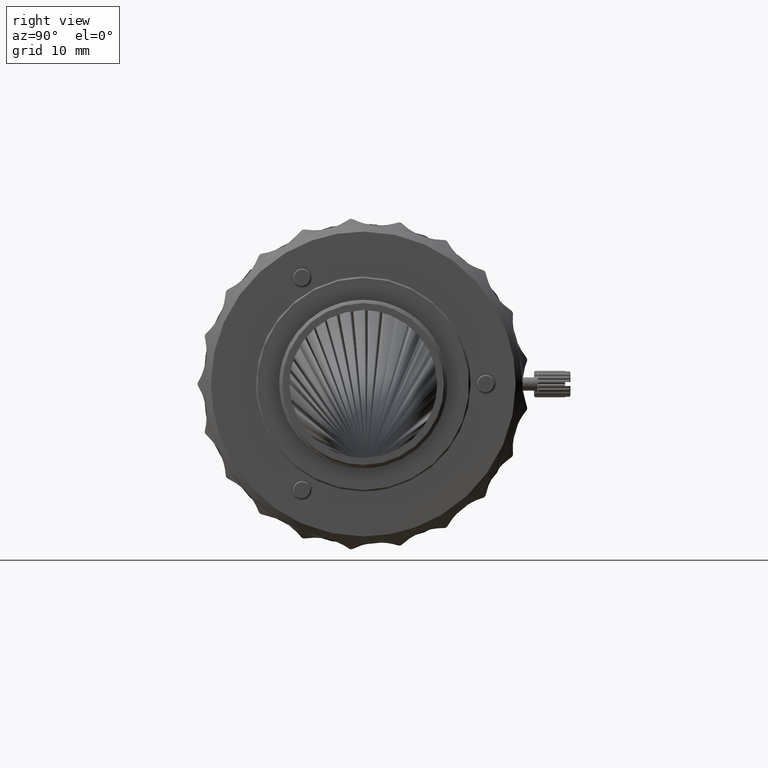
[diagram: clean part render]
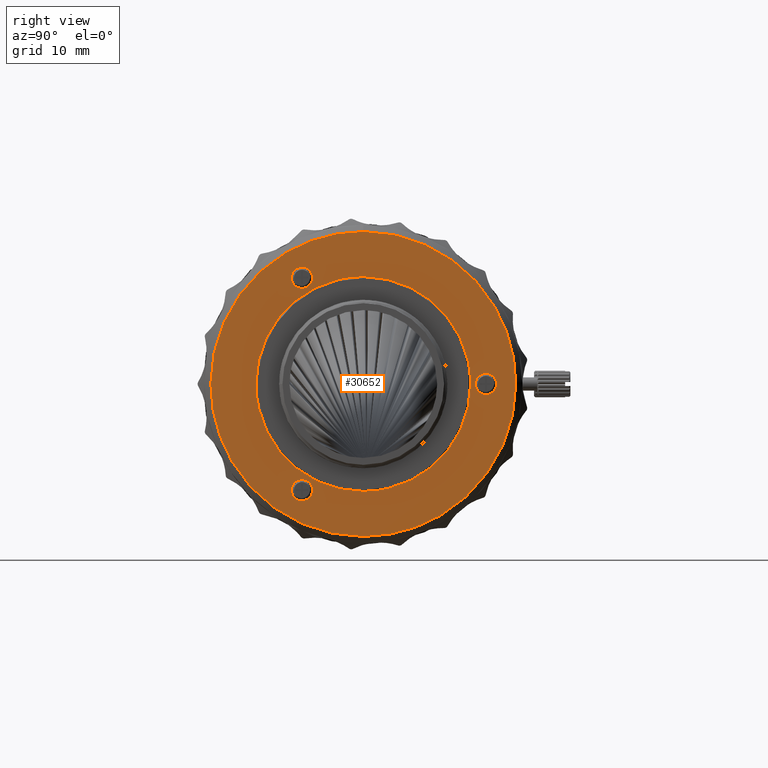
[diagram: same view with one face highlighted and labeled with its STEP entity id]
A machine part, right view. The second image highlights one B-rep face of the part: STEP entity #30652.
In plain terms, the highlighted planar face has unit normal (1, 0, 0).
Its self-contained STEP definition (entity closure, byte-faithful):
#33 = CARTESIAN_POINT ( 'NONE',  ( 72.34600000000003206, 19.48327475195986125, 1.279466947837084589 ) ) ;
#277 = CARTESIAN_POINT ( 'NONE',  ( 72.34599999999998943, -7.649999999999998579, -15.81203045977067134 ) ) ;
#313 = CARTESIAN_POINT ( 'NONE',  ( 72.34600000000000364, 18.50000000000000000, -1.599999999999996314 ) ) ;
#530 = CARTESIAN_POINT ( 'NONE',  ( 72.34600000000000364, 20.09999999999999787, -1.567547902908608388E-16 ) ) ;
#1724 = EDGE_CURVE ( 'NONE', #71629, #14433, #76705, .T. ) ;
#1728 = CARTESIAN_POINT ( 'NONE',  ( 72.34599999999998943, -9.040560489760681051, -17.62146997001000059 ) ) ;
#1990 = CARTESIAN_POINT ( 'NONE',  ( 72.34600000000000364, 11.52646550448638152, -19.96012677810042391 ) ) ;
#2954 = CARTESIAN_POINT ( 'NONE',  ( 72.34600000000000364, 18.28747538716073251, -14.02976521499721585 ) ) ;
#2956 = EDGE_CURVE ( 'NONE', #22178, #73763, #82529, .T. ) ;
#3169 = CARTESIAN_POINT ( 'NONE',  ( 72.34600000000000364, -9.668796614974848325, 17.57982625267931098 ) ) ;
#3200 = CARTESIAN_POINT ( 'NONE',  ( 72.34600000000000364, -9.040560489760682827, 17.62146997001000059 ) ) ;
#3241 = CARTESIAN_POINT ( 'NONE',  ( 72.34600000000000364, -9.250000000000001776, 14.42146997000999953 ) ) ;
#3563 = CARTESIAN_POINT ( 'NONE',  ( 72.34600000000000364, -1.505346479929906112, -23.00000000000000000 ) ) ;
#3640 = CARTESIAN_POINT ( 'NONE',  ( 72.34600000000000364, 17.51672524804014230, 1.279466947837084811 ) ) ;
#3734 = CARTESIAN_POINT ( 'NONE',  ( 72.34600000000000364, -7.851941778633186431, 15.21567960141656251 ) ) ;
#4174 = B_SPLINE_CURVE_WITH_KNOTS ( 'NONE', 3,
 ( #93812, #25877, #4179, #19460, #12049, #78556, #92828, #48982, #3200, #71654 ),
 .UNSPECIFIED., .F., .F.,
 ( 4, 2, 2, 2, 4 ),
 ( 0.000000000000000000, 0.1249999999999998335, 0.2499999999999998890, 0.3749999999999999445, 0.5000000000000000000 ),
 .UNSPECIFIED. ) ;
#4179 = CARTESIAN_POINT ( 'NONE',  ( 72.34599999999997522, -7.691643717330691743, 16.44026658498484750 ) ) ;
#4220 = CARTESIAN_POINT ( 'NONE',  ( 72.34599999999998943, -9.040560489760681051, 14.42146997000999953 ) ) ;
#4533 = CARTESIAN_POINT ( 'NONE',  ( 72.34600000000000364, -15.19901526406302494, -17.32789667061227235 ) ) ;
#4605 = ORIENTED_EDGE ( 'NONE', *, *, #74880, .T. ) ;
#4693 = CARTESIAN_POINT ( 'NONE',  ( 72.34599999999997522, -21.82530040469135102, 7.410960144875548217 ) ) ;
#5594 = CARTESIAN_POINT ( 'NONE',  ( 72.34600000000001785, 17.22053305216291363, 0.9832747519598614705 ) ) ;
#6033 = ORIENTED_EDGE ( 'NONE', *, *, #88146, .F. ) ;
#6164 = CARTESIAN_POINT ( 'NONE',  ( 72.34599999999998943, -22.99999999977789855, 1.505346483096639432 ) ) ;
#6235 = CARTESIAN_POINT ( 'NONE',  ( 72.34600000000001785, -8.266725248040136975, -14.74200302217291103 ) ) ;
#6251 = CARTESIAN_POINT ( 'NONE',  ( 72.34599999999997522, 18.28747538892106661, 14.02976521272457155 ) ) ;
#6659 = CARTESIAN_POINT ( 'NONE',  ( 72.34599999999997522, -17.32789667000329459, 15.19901526473481823 ) ) ;
#7065 = CARTESIAN_POINT ( 'NONE',  ( 72.34600000000003206, 16.09624051417745250, 2.117379975320241581 ) ) ;
#7127 = B_SPLINE_CURVE_WITH_KNOTS ( 'NONE', 3,
 ( #31797, #25876, #70679, #55402, #62759, #54429, #84519, #41117, #47042, #55893, #9637, #85482, #85961, #10610, #71169, #92826, #39667, #92355 ),
 .UNSPECIFIED., .F., .F.,
 ( 4, 2, 2, 2, 2, 2, 2, 2, 4 ),
 ( 0.000000000000000000, 0.06250000000000001388, 0.1250000000000000278, 0.1875000000000000555, 0.2500000000000000555, 0.3125000000000000555, 0.3750000000000001110, 0.4375000000000000555, 0.5000000000000000000 ),
 .UNSPECIFIED. ) ;
#7698 = CARTESIAN_POINT ( 'NONE',  ( 72.34600000000000364, -7.650000000000001243, -16.02146997000999562 ) ) ;
#8659 = CARTESIAN_POINT ( 'NONE',  ( 72.34600000000000364, -9.250000000000001776, -17.62146997001000415 ) ) ;
#8916 = CARTESIAN_POINT ( 'NONE',  ( 72.34600000000000364, 17.32789667000330525, -15.19901526473488396 ) ) ;
#9385 = CARTESIAN_POINT ( 'NONE',  ( 72.34600000000001785, 7.410960141655944078, -21.82530040578464181 ) ) ;
#9514 = VERTEX_POINT ( 'NONE', #21229 ) ;
#9637 = CARTESIAN_POINT ( 'NONE',  ( 72.34600000000000364, 9.884353021853733878, -12.87901737945677638 ) ) ;
#9645 = CARTESIAN_POINT ( 'NONE',  ( 72.34600000000000364, 16.94164371733070240, -0.4187966149748475475 ) ) ;
#9651 = CARTESIAN_POINT ( 'NONE',  ( 72.34599999999997522, -4.203378958676862176, -15.68130951163104037 ) ) ;
#9780 = CARTESIAN_POINT ( 'NONE',  ( 72.34600000000000364, -10.64805822136681179, -15.21567960141656428 ) ) ;
#10224 = CARTESIAN_POINT ( 'NONE',  ( 72.34600000000000364, 20.09999999999999787, -0.2094395102393194763 ) ) ;
#10578 = CARTESIAN_POINT ( 'NONE',  ( 72.34600000000000364, -9.250000000000001776, 17.62146997001000059 ) ) ;
#10610 = CARTESIAN_POINT ( 'NONE',  ( 72.34600000000003206, 5.217086906266509949, -15.37380456759237823 ) ) ;
#10624 = CARTESIAN_POINT ( 'NONE',  ( 72.34600000000003206, -14.06059805916265404, -8.116122527952690291 ) ) ;
#10709 = EDGE_LOOP ( 'NONE', ( #33125, #92075, #49530, #72028 ) ) ;
#10952 = CARTESIAN_POINT ( 'NONE',  ( 72.34599999999998943, -3.010655737201569426, -22.85173997875637397 ) ) ;
#11044 = CARTESIAN_POINT ( 'NONE',  ( 72.34600000000001785, -10.52946694783708637, 17.00474472196986397 ) ) ;
#11189 = CARTESIAN_POINT ( 'NONE',  ( 72.34600000000001785, 19.77946694783708637, -0.9832747519598625807 ) ) ;
#12049 = CARTESIAN_POINT ( 'NONE',  ( 72.34600000000001785, -7.970533052162914522, 17.00474472196986753 ) ) ;
#12548 = CARTESIAN_POINT ( 'NONE',  ( 72.34600000000001785, -12.20699959794086809, 10.70320905788714150 ) ) ;
#12955 = CARTESIAN_POINT ( 'NONE',  ( 72.34599999999998943, -22.99999999999998579, 3.398692523665877153E-09 ) ) ;
#13042 = CARTESIAN_POINT ( 'NONE',  ( 72.34600000000000364, -15.68120257088721736, -4.203546457988838192 ) ) ;
#13051 = VERTEX_POINT ( 'NONE', #22951 ) ;
#13879 = DIRECTION ( 'NONE',  ( 0.000000000000000000, -1.000000000000000000, 0.000000000000000000 ) ) ;
#13976 = CARTESIAN_POINT ( 'NONE',  ( 72.34600000000001785, 7.181883932871187426, 14.55995899186603815 ) ) ;
#14123 = CARTESIAN_POINT ( 'NONE',  ( 72.34599999999998943, 21.82530040595770870, 7.410960141187749706 ) ) ;
#14217 = ORIENTED_EDGE ( 'NONE', *, *, #86439, .F. ) ;
#14279 = CARTESIAN_POINT ( 'NONE',  ( 72.34600000000000364, 20.09999999999999787, -1.567547902908608388E-16 ) ) ;
#14367 = CARTESIAN_POINT ( 'NONE',  ( 72.34600000000000364, 22.26438291903325251, -5.963499078445072321 ) ) ;
#14433 = VERTEX_POINT ( 'NONE', #27657 ) ;
#14454 = CARTESIAN_POINT ( 'NONE',  ( 72.34600000000000364, 12.87901737946069325, 9.884353021849477727 ) ) ;
#14946 = CARTESIAN_POINT ( 'NONE',  ( 72.34600000000001785, 14.06059805914176053, 8.116122527985663027 ) ) ;
#14985 = B_SPLINE_CURVE_WITH_KNOTS ( 'NONE', 3,
 ( #15121, #15594, #9645, #31808, #62298, #68269, #22522, #76174, #23956, #313 ),
 .UNSPECIFIED., .F., .F.,
 ( 4, 2, 2, 2, 4 ),
 ( 0.000000000000000000, 0.1250000000000000000, 0.2500000000000000000, 0.3750000000000000000, 0.5000000000000000000 ),
 .UNSPECIFIED. ) ;
#15084 = CARTESIAN_POINT ( 'NONE',  ( 72.34600000000003206, -8.831203385025151675, -14.46311368734069447 ) ) ;
#15098 = CARTESIAN_POINT ( 'NONE',  ( 72.34599999999998943, -1.408343819019454401E-15, 22.99999999999992895 ) ) ;
#15121 = CARTESIAN_POINT ( 'NONE',  ( 72.34600000000000364, 16.89999999999999858, 4.645107879135069678E-16 ) ) ;
#15573 = CARTESIAN_POINT ( 'NONE',  ( 72.34599999999998943, 1.505346479908560298, 22.99999999999992184 ) ) ;
#15594 = CARTESIAN_POINT ( 'NONE',  ( 72.34599999999998943, 16.90000000000000924, -0.2094395102393186714 ) ) ;
#15809 = CARTESIAN_POINT ( 'NONE',  ( 72.34600000000001785, 18.91879661497484832, 1.558356282669300930 ) ) ;
#16305 = CARTESIAN_POINT ( 'NONE',  ( 72.34600000000001785, 21.82530040469134036, -7.410960144875606836 ) ) ;
#16407 = EDGE_CURVE ( 'NONE', #62020, #71629, #7127, .T. ) ;
#16786 = CARTESIAN_POINT ( 'NONE',  ( 72.34600000000003206, -9.668796614974850101, 14.46311368734069269 ) ) ;
#16969 = CARTESIAN_POINT ( 'NONE',  ( 72.34600000000000364, 18.50000000000000000, 1.599999999999996314 ) ) ;
#16988 = CARTESIAN_POINT ( 'NONE',  ( 72.34600000000000364, 18.08120338502515168, 1.558356282669300930 ) ) ;
#17310 = B_SPLINE_CURVE_WITH_KNOTS ( 'NONE', 3,
 ( #77250, #56036, #47186, #84659, #33391, #46697, #9780, #18624, #39806, #92007 ),
 .UNSPECIFIED., .F., .F.,
 ( 4, 2, 2, 2, 4 ),
 ( 0.5000000000000000000, 0.6250000000000000000, 0.7500000000000000000, 0.8750000000000000000, 1.000000000000000000 ),
 .UNSPECIFIED. ) ;
#17528 = CARTESIAN_POINT ( 'NONE',  ( 72.34600000000003206, -9.884393135202234504, -12.87907741333913592 ) ) ;
#17625 = CARTESIAN_POINT ( 'NONE',  ( 72.34600000000000364, 19.89805822136680646, -0.8057903685934377780 ) ) ;
#17739 = CARTESIAN_POINT ( 'NONE',  ( 72.34600000000000364, -9.250000000000001776, -17.62146997001000415 ) ) ;
#17959 = CARTESIAN_POINT ( 'NONE',  ( 72.34600000000000364, -9.250000000000001776, -17.62146997001000415 ) ) ;
#18024 = CARTESIAN_POINT ( 'NONE',  ( 72.34600000000000364, -10.70326011250328158, 12.20705065255699218 ) ) ;
#18025 = EDGE_CURVE ( 'NONE', #14433, #93774, #56101, .T. ) ;
#18489 = VERTEX_POINT ( 'NONE', #14279 ) ;
#18532 = CARTESIAN_POINT ( 'NONE',  ( 72.34600000000000364, -8.266725248040136975, 14.74200302217290925 ) ) ;
#18624 = CARTESIAN_POINT ( 'NONE',  ( 72.34600000000003206, -10.80835628266930826, -15.60267335503515262 ) ) ;
#18952 = CARTESIAN_POINT ( 'NONE',  ( 72.34599999999998943, -10.85000000000000142, 15.81203045977067845 ) ) ;
#19319 = EDGE_LOOP ( 'NONE', ( #79086, #48052, #34550, #47255 ) ) ;
#19357 = CARTESIAN_POINT ( 'NONE',  ( 72.34599999999998943, -3.718651290595520123E-15, 16.20000000000000284 ) ) ;
#19429 = CARTESIAN_POINT ( 'NONE',  ( 72.34600000000000364, -10.23327475195986302, 17.30093691784708909 ) ) ;
#19460 = CARTESIAN_POINT ( 'NONE',  ( 72.34599999999998943, -7.851941778633185542, 16.82726033860343762 ) ) ;
#19477 = CARTESIAN_POINT ( 'NONE',  ( 72.34600000000001785, -8.116122527996715519, 14.06059805913823801 ) ) ;
#19491 = CARTESIAN_POINT ( 'NONE',  ( 72.34599999999998943, -1.408343819019454401E-15, 22.99999999999992895 ) ) ;
#20916 = B_SPLINE_CURVE_WITH_KNOTS ( 'NONE', 3,
 ( #29138, #59170, #37014, #14367, #16305, #47288, #76882, #2954, #8916, #25124, #38457, #1990, #23214, #9385, #69465, #32037, #62058, #84276 ),
 .UNSPECIFIED., .F., .F.,
 ( 4, 2, 2, 2, 2, 2, 2, 2, 4 ),
 ( 0.000000000000000000, 0.1249999999999998890, 0.2499999999999997780, 0.3749999999999997780, 0.4999999999999997780, 0.6249999999999997780, 0.7499999999999997780, 0.8749999999999998890, 1.000000000000000000 ),
 .UNSPECIFIED. ) ;
#21020 = CARTESIAN_POINT ( 'NONE',  ( 72.34599999999998943, -7.851941778633185542, -15.21567960141655895 ) ) ;
#21229 = CARTESIAN_POINT ( 'NONE',  ( 72.34599999999998943, 2.275705557007859723E-15, -23.00000000000000000 ) ) ;
#21760 = FACE_BOUND ( 'NONE', #19319, .T. ) ;
#21816 = CARTESIAN_POINT ( 'NONE',  ( 72.34600000000000364, -10.84999999999999787, 16.02146997000999917 ) ) ;
#21993 = CARTESIAN_POINT ( 'NONE',  ( 72.34599999999997522, -7.691643717330691743, -15.60267335503514374 ) ) ;
#22034 = B_SPLINE_CURVE_WITH_KNOTS ( 'NONE', 3,
 ( #91823, #54381, #16988, #80459, #3640, #5594, #65161, #71599, #34655, #73067 ),
 .UNSPECIFIED., .F., .F.,
 ( 4, 2, 2, 2, 4 ),
 ( 0.5000000000000000000, 0.6250000000000000000, 0.7500000000000000000, 0.8750000000000000000, 1.000000000000000000 ),
 .UNSPECIFIED. ) ;
#22178 = VERTEX_POINT ( 'NONE', #12955 ) ;
#22522 = CARTESIAN_POINT ( 'NONE',  ( 72.34600000000000364, 17.69420963140656156, -1.398058221366808240 ) ) ;
#22723 = FACE_OUTER_BOUND ( 'NONE', #10709, .T. ) ;
#22748 = B_SPLINE_CURVE_WITH_KNOTS ( 'NONE', 3,
 ( #72496, #3563, #10952, #57701, #87771, #33108, #94649, #41948, #4533, #71519, #63120, #86801, #35062, #93191, #25742, #55760, #33604, #49332 ),
 .UNSPECIFIED., .F., .F.,
 ( 4, 2, 2, 2, 2, 2, 2, 2, 4 ),
 ( 0.000000000000000000, 0.1250000000000001388, 0.2500000000000002220, 0.3750000000000002776, 0.5000000000000003331, 0.6250000000000002220, 0.7500000000000001110, 0.8750000000000001110, 1.000000000000000000 ),
 .UNSPECIFIED. ) ;
#22867 = CARTESIAN_POINT ( 'NONE',  ( 72.34599999999998943, 2.726687383286163609E-15, -16.20000000000000639 ) ) ;
#22933 = CARTESIAN_POINT ( 'NONE',  ( 72.34600000000000364, -9.250000000000001776, 17.62146997001000059 ) ) ;
#22951 = CARTESIAN_POINT ( 'NONE',  ( 72.34600000000000364, 16.89999999999999858, 4.645107879135069678E-16 ) ) ;
#22972 = CARTESIAN_POINT ( 'NONE',  ( 72.34600000000000364, -7.649999999999998579, -16.23090948024931990 ) ) ;
#23202 = CARTESIAN_POINT ( 'NONE',  ( 72.34600000000000364, 23.91999999999999815, 23.91999999999999815 ) ) ;
#23214 = CARTESIAN_POINT ( 'NONE',  ( 72.34600000000000364, 10.19247774557083019, -20.67315809038375818 ) ) ;
#23956 = CARTESIAN_POINT ( 'NONE',  ( 72.34600000000000364, 18.29056048976068283, -1.599999999999995648 ) ) ;
#24033 = CARTESIAN_POINT ( 'NONE',  ( 72.34599999999998943, 22.99999999999998579, -2.922525945046356306E-09 ) ) ;
#24906 = CARTESIAN_POINT ( 'NONE',  ( 72.34600000000001785, -7.181883932862334952, -14.55995899187474230 ) ) ;
#25124 = CARTESIAN_POINT ( 'NONE',  ( 72.34600000000000364, 15.19901526217866206, -17.32789667224547259 ) ) ;
#25742 = CARTESIAN_POINT ( 'NONE',  ( 72.34600000000000364, -22.26438292022031717, -5.963499074070298889 ) ) ;
#25876 = CARTESIAN_POINT ( 'NONE',  ( 72.34600000000001785, 16.20000000000000639, -1.063522012890410595 ) ) ;
#25877 = CARTESIAN_POINT ( 'NONE',  ( 72.34599999999998943, -7.649999999999998579, 16.23090948024932345 ) ) ;
#25895 = CARTESIAN_POINT ( 'NONE',  ( 72.34600000000001785, -1.063340488358752722, 16.19996389893437794 ) ) ;
#25987 = CARTESIAN_POINT ( 'NONE',  ( 72.34600000000000364, 19.48327475195985770, -1.279466947837085700 ) ) ;
#26473 = CARTESIAN_POINT ( 'NONE',  ( 72.34600000000003206, 20.05835628266930115, -0.4187966149748482692 ) ) ;
#26802 = CARTESIAN_POINT ( 'NONE',  ( 72.34599999999997522, -10.05579036859343489, 17.41952819137680919 ) ) ;
#26854 = CARTESIAN_POINT ( 'NONE',  ( 72.34600000000001785, -5.217086906287210724, 15.37380456758489977 ) ) ;
#27057 = B_SPLINE_CURVE_WITH_KNOTS ( 'NONE', 3,
 ( #36109, #43016, #59262, #75028, #52349, #13976, #51861, #67620, #96190, #65659, #14454, #14946, #90280, #44476, #43498, #7065, #74545, #35636 ),
 .UNSPECIFIED., .F., .F.,
 ( 4, 2, 2, 2, 2, 2, 2, 2, 4 ),
 ( 0.5000000000000000000, 0.5625000000000000000, 0.6250000000000000000, 0.6875000000000000000, 0.7500000000000000000, 0.8125000000000000000, 0.8750000000000000000, 0.9375000000000000000, 1.000000000000000000 ),
 .UNSPECIFIED. ) ;
#27311 = VERTEX_POINT ( 'NONE', #47763 ) ;
#27369 = CARTESIAN_POINT ( 'NONE',  ( 72.34600000000003206, -7.691643717330695296, 15.60267335503514907 ) ) ;
#27657 = CARTESIAN_POINT ( 'NONE',  ( 72.34599999999998943, -16.20000000000000639, -8.932528613042471514E-16 ) ) ;
#27847 = CARTESIAN_POINT ( 'NONE',  ( 72.34599999999998943, -14.02976521229944851, 18.28747538923033744 ) ) ;
#28331 = CARTESIAN_POINT ( 'NONE',  ( 72.34600000000000364, -3.010655736749319633, 22.85173997880098185 ) ) ;
#28688 = EDGE_CURVE ( 'NONE', #9514, #22178, #22748, .T. ) ;
#28824 = CARTESIAN_POINT ( 'NONE',  ( 72.34599999999998943, -5.963499075160633822, 22.26438291991293639 ) ) ;
#29138 = CARTESIAN_POINT ( 'NONE',  ( 72.34599999999998943, 22.99999999999998579, -2.922525945046356306E-09 ) ) ;
#29621 = CARTESIAN_POINT ( 'NONE',  ( 72.34600000000000364, 20.09999999999999787, 0.2094395102393188934 ) ) ;
#30100 = CARTESIAN_POINT ( 'NONE',  ( 72.34600000000000364, 19.89805822136680291, 0.8057903685934366678 ) ) ;
#30161 = EDGE_LOOP ( 'NONE', ( #71608, #96097, #82909, #88261 ) ) ;
#30282 = EDGE_LOOP ( 'NONE', ( #60048, #4605, #71866, #71834 ) ) ;
#30350 = CARTESIAN_POINT ( 'NONE',  ( 72.34599999999998943, 22.99999999999998579, -2.922525945046356306E-09 ) ) ;
#30620 = EDGE_CURVE ( 'NONE', #18489, #79977, #71726, .T. ) ;
#30652 = ADVANCED_FACE ( 'NONE', ( #51768, #21760, #51285, #59643, #22723 ), #52250, .T. ) ;
#31340 = CARTESIAN_POINT ( 'NONE',  ( 72.34599999999998943, -16.20000000000000639, -8.932528613042471514E-16 ) ) ;
#31797 = CARTESIAN_POINT ( 'NONE',  ( 72.34599999999998943, 16.20000000000000639, 1.190356688771227738E-15 ) ) ;
#31808 = CARTESIAN_POINT ( 'NONE',  ( 72.34599999999997522, 17.10194177863318998, -0.8057903685934371119 ) ) ;
#31815 = CARTESIAN_POINT ( 'NONE',  ( 72.34599999999998943, -16.20000000000000284, 1.063522012907354375 ) ) ;
#32037 = CARTESIAN_POINT ( 'NONE',  ( 72.34600000000001785, 3.010655736749317413, -22.85173997880106000 ) ) ;
#33108 = CARTESIAN_POINT ( 'NONE',  ( 72.34600000000001785, -10.19247774699920228, -20.67315808969600255 ) ) ;
#33125 = ORIENTED_EDGE ( 'NONE', *, *, #2956, .F. ) ;
#33209 = CARTESIAN_POINT ( 'NONE',  ( 72.34600000000003206, -10.80835628266930826, 16.44026658498484750 ) ) ;
#33259 = CARTESIAN_POINT ( 'NONE',  ( 72.34600000000001785, -15.37380456758165259, -5.217086906280115954 ) ) ;
#33391 = CARTESIAN_POINT ( 'NONE',  ( 72.34600000000000364, -10.23327475195986302, -14.74200302217291103 ) ) ;
#33604 = CARTESIAN_POINT ( 'NONE',  ( 72.34600000000001785, -23.00000000013306334, -1.505346477896042812 ) ) ;
#33756 = CARTESIAN_POINT ( 'NONE',  ( 72.34599999999998943, -3.718651290595520123E-15, 16.20000000000000284 ) ) ;
#34214 = CARTESIAN_POINT ( 'NONE',  ( 72.34599999999997522, -10.64805822136680824, 15.21567960141655718 ) ) ;
#34268 = CARTESIAN_POINT ( 'NONE',  ( 72.34600000000000364, -7.649999999999998579, 15.81203045977067845 ) ) ;
#34363 = EDGE_CURVE ( 'NONE', #63808, #86735, #87294, .T. ) ;
#34550 = ORIENTED_EDGE ( 'NONE', *, *, #97079, .F. ) ;
#34655 = CARTESIAN_POINT ( 'NONE',  ( 72.34600000000000364, 16.90000000000000568, 0.2094395102393192820 ) ) ;
#34673 = CARTESIAN_POINT ( 'NONE',  ( 72.34600000000000364, -10.64805822136681179, 16.82726033860344472 ) ) ;
#34727 = CARTESIAN_POINT ( 'NONE',  ( 72.34600000000001785, -15.37373786151214894, 5.217059275729904577 ) ) ;
#34740 = CARTESIAN_POINT ( 'NONE',  ( 72.34600000000000364, -11.52646550448639040, 19.96012677810034219 ) ) ;
#35062 = CARTESIAN_POINT ( 'NONE',  ( 72.34600000000001785, -20.67315809059727982, -10.19247774517110727 ) ) ;
#35636 = CARTESIAN_POINT ( 'NONE',  ( 72.34599999999998943, 16.20000000000000639, 1.190356688771227738E-15 ) ) ;
#35775 = CARTESIAN_POINT ( 'NONE',  ( 72.34600000000000364, -8.444209631406559780, -14.62341174864318916 ) ) ;
#36109 = CARTESIAN_POINT ( 'NONE',  ( 72.34599999999998943, -3.718651290595520123E-15, 16.20000000000000284 ) ) ;
#36510 = CARTESIAN_POINT ( 'NONE',  ( 72.34600000000000364, 18.50000000000000000, 1.599999999999996314 ) ) ;
#36685 = CARTESIAN_POINT ( 'NONE',  ( 72.34599999999996101, -22.26438291903325251, 5.963499078445013701 ) ) ;
#37014 = CARTESIAN_POINT ( 'NONE',  ( 72.34600000000000364, 22.85173997835689264, -3.010655740120398161 ) ) ;
#37370 = ORIENTED_EDGE ( 'NONE', *, *, #66318, .F. ) ;
#37838 = B_SPLINE_CURVE_WITH_KNOTS ( 'NONE', 3,
 ( #55352, #87373, #79485, #93275, #56330, #94737, #48449, #55848, #86394, #17959 ),
 .UNSPECIFIED., .F., .F.,
 ( 4, 2, 2, 2, 4 ),
 ( 0.000000000000000000, 0.1250000000000000000, 0.2500000000000000000, 0.3750000000000000000, 0.5000000000000000000 ),
 .UNSPECIFIED. ) ;
#38091 = CARTESIAN_POINT ( 'NONE',  ( 72.34600000000000364, -7.649999999999999467, 16.02146997000999917 ) ) ;
#38457 = CARTESIAN_POINT ( 'NONE',  ( 72.34600000000000364, 14.02976521229944318, -18.28747538923041915 ) ) ;
#39667 = CARTESIAN_POINT ( 'NONE',  ( 72.34600000000001785, 1.063340488385677851, -16.19996389893103483 ) ) ;
#39806 = CARTESIAN_POINT ( 'NONE',  ( 72.34600000000000364, -10.85000000000000142, -15.81203045977067845 ) ) ;
#40160 = CARTESIAN_POINT ( 'NONE',  ( 72.34600000000000364, -10.70320905787544419, -12.20699959795089207 ) ) ;
#40261 = CARTESIAN_POINT ( 'NONE',  ( 72.34600000000000364, 20.09999999999999787, -1.567547902908608388E-16 ) ) ;
#40608 = CARTESIAN_POINT ( 'NONE',  ( 72.34599999999998943, -9.459439510239318949, 17.62146997001000059 ) ) ;
#40655 = CARTESIAN_POINT ( 'NONE',  ( 72.34599999999998943, -15.68130951163184861, 4.203378958689401479 ) ) ;
#41083 = CARTESIAN_POINT ( 'NONE',  ( 72.34600000000000364, -10.84999999999999787, 16.02146997000999917 ) ) ;
#41117 = CARTESIAN_POINT ( 'NONE',  ( 72.34600000000001785, 12.87907741333416212, -9.884393135207206527 ) ) ;
#41133 = CARTESIAN_POINT ( 'NONE',  ( 72.34600000000004627, -12.87907741332575640, 9.884393135217303339 ) ) ;
#41494 = VERTEX_POINT ( 'NONE', #65223 ) ;
#41948 = CARTESIAN_POINT ( 'NONE',  ( 72.34600000000003206, -14.02976521410555222, -18.28747538786343085 ) ) ;
#42580 = EDGE_LOOP ( 'NONE', ( #37370, #51331, #6033, #14217 ) ) ;
#43016 = CARTESIAN_POINT ( 'NONE',  ( 72.34599999999998943, 1.063340488358746727, 16.20003610106562775 ) ) ;
#43498 = CARTESIAN_POINT ( 'NONE',  ( 72.34600000000000364, 15.68120257088722092, 4.203546458002334951 ) ) ;
#43572 = CARTESIAN_POINT ( 'NONE',  ( 72.34600000000001785, -18.28747538716074317, 14.02976521499714835 ) ) ;
#43647 = CARTESIAN_POINT ( 'NONE',  ( 72.34600000000000364, -9.040560489760682827, -14.42146997000999953 ) ) ;
#43957 = VERTEX_POINT ( 'NONE', #86631 ) ;
#44476 = CARTESIAN_POINT ( 'NONE',  ( 72.34600000000001785, 15.37380456758014091, 5.217086906301237725 ) ) ;
#45577 = CARTESIAN_POINT ( 'NONE',  ( 72.34599999999996101, 11.52646550591586028, 19.96012677729030571 ) ) ;
#46697 = CARTESIAN_POINT ( 'NONE',  ( 72.34600000000001785, -10.52946694783708637, -15.03819521805013260 ) ) ;
#47042 = CARTESIAN_POINT ( 'NONE',  ( 72.34599999999998943, 12.20699959794422895, -10.70320905788210375 ) ) ;
#47060 = CARTESIAN_POINT ( 'NONE',  ( 72.34599999999998943, -1.063340488385672300, -16.20003610106898151 ) ) ;
#47186 = CARTESIAN_POINT ( 'NONE',  ( 72.34600000000000364, -9.668796614974848325, -14.46311368734069447 ) ) ;
#47255 = ORIENTED_EDGE ( 'NONE', *, *, #58885, .F. ) ;
#47288 = CARTESIAN_POINT ( 'NONE',  ( 72.34600000000000364, 20.67315808888013251, -10.19247774862053291 ) ) ;
#47763 = CARTESIAN_POINT ( 'NONE',  ( 72.34600000000000364, -7.650000000000001243, -16.02146997000999562 ) ) ;
#47954 = CARTESIAN_POINT ( 'NONE',  ( 72.34599999999998943, -1.408343819019454401E-15, 22.99999999999992895 ) ) ;
#48031 = CARTESIAN_POINT ( 'NONE',  ( 72.34600000000001785, -12.20705065256869659, -10.70326011249326115 ) ) ;
#48052 = ORIENTED_EDGE ( 'NONE', *, *, #81782, .F. ) ;
#48449 = CARTESIAN_POINT ( 'NONE',  ( 72.34600000000000364, -10.05579036859343844, -17.41952819137680919 ) ) ;
#48516 = CARTESIAN_POINT ( 'NONE',  ( 72.34599999999997522, -16.09613357343281592, 2.117547474633155069 ) ) ;
#48538 = CARTESIAN_POINT ( 'NONE',  ( 72.34600000000001785, -7.970533052162910970, 15.03819521805013260 ) ) ;
#48607 = CARTESIAN_POINT ( 'NONE',  ( 72.34600000000000364, 18.50000000000000000, -1.599999999999996314 ) ) ;
#48982 = CARTESIAN_POINT ( 'NONE',  ( 72.34600000000003206, -8.831203385025151675, 17.57982625267930388 ) ) ;
#49332 = CARTESIAN_POINT ( 'NONE',  ( 72.34599999999998943, -22.99999999999998579, 3.398692523665877153E-09 ) ) ;
#49431 = CARTESIAN_POINT ( 'NONE',  ( 72.34600000000000364, -10.85000000000000142, 16.23090948024931990 ) ) ;
#49496 = CARTESIAN_POINT ( 'NONE',  ( 72.34599999999998943, -22.85173997835691040, 3.010655740120347534 ) ) ;
#49507 = CARTESIAN_POINT ( 'NONE',  ( 72.34600000000000364, -8.831203385025151675, 14.46311368734069269 ) ) ;
#49530 = ORIENTED_EDGE ( 'NONE', *, *, #91476, .F. ) ;
#50952 = CARTESIAN_POINT ( 'NONE',  ( 72.34599999999998943, -16.20000000000000639, -8.932528613042471514E-16 ) ) ;
#51285 = FACE_BOUND ( 'NONE', #42580, .T. ) ;
#51331 = ORIENTED_EDGE ( 'NONE', *, *, #34363, .F. ) ;
#51527 = CARTESIAN_POINT ( 'NONE',  ( 72.34600000000001785, -7.970533052162914522, -15.03819521805014148 ) ) ;
#51768 = FACE_BOUND ( 'NONE', #30282, .T. ) ;
#51861 = CARTESIAN_POINT ( 'NONE',  ( 72.34600000000000364, 8.116082414641258680, 14.06053802525495833 ) ) ;
#52250 = PLANE ( 'NONE',  #94540 ) ;
#52349 = CARTESIAN_POINT ( 'NONE',  ( 72.34600000000000364, 5.217059275757728543, 15.37373786149965760 ) ) ;
#52497 = CARTESIAN_POINT ( 'NONE',  ( 72.34599999999997522, 23.00000000009963941, 1.505346478385633180 ) ) ;
#52981 = CARTESIAN_POINT ( 'NONE',  ( 72.34600000000000364, 18.50000000000000000, -1.599999999999996314 ) ) ;
#53213 = CARTESIAN_POINT ( 'NONE',  ( 72.34600000000000364, 19.77946694783708637, 0.9832747519598610264 ) ) ;
#54381 = CARTESIAN_POINT ( 'NONE',  ( 72.34599999999998943, 18.29056048976068283, 1.599999999999995426 ) ) ;
#54429 = CARTESIAN_POINT ( 'NONE',  ( 72.34600000000003206, 14.55995899185641029, -7.181883932892234590 ) ) ;
#54444 = CARTESIAN_POINT ( 'NONE',  ( 72.34599999999998943, 2.726687383286163609E-15, -16.20000000000000639 ) ) ;
#54921 = CARTESIAN_POINT ( 'NONE',  ( 72.34600000000000364, -8.116082414632872499, -14.06053802526333740 ) ) ;
#55110 = CARTESIAN_POINT ( 'NONE',  ( 72.34600000000000364, -9.250000000000001776, -14.42146997000999775 ) ) ;
#55352 = CARTESIAN_POINT ( 'NONE',  ( 72.34600000000000364, -10.84999999999999787, -16.02146997000999562 ) ) ;
#55402 = CARTESIAN_POINT ( 'NONE',  ( 72.34600000000001785, 15.68130951163838560, -4.203378958673492427 ) ) ;
#55581 = VERTEX_POINT ( 'NONE', #52981 ) ;
#55760 = CARTESIAN_POINT ( 'NONE',  ( 72.34600000000000364, -22.85173997902256460, -3.010655735180832071 ) ) ;
#55848 = CARTESIAN_POINT ( 'NONE',  ( 72.34600000000003206, -9.668796614974850101, -17.57982625267931098 ) ) ;
#55893 = CARTESIAN_POINT ( 'NONE',  ( 72.34600000000000364, 10.70326011249992426, -12.20705065256203348 ) ) ;
#55938 = CARTESIAN_POINT ( 'NONE',  ( 72.34599999999997522, -8.444209631406558003, 14.62341174864318383 ) ) ;
#56036 = CARTESIAN_POINT ( 'NONE',  ( 72.34599999999998943, -9.459439510239318949, -14.42146997000999598 ) ) ;
#56101 = B_SPLINE_CURVE_WITH_KNOTS ( 'NONE', 3,
 ( #31340, #31815, #48516, #40655, #34727, #63275, #78574, #41133, #12548, #18024, #72161, #19477, #93339, #26854, #85979, #64244, #25895, #33756 ),
 .UNSPECIFIED., .F., .F.,
 ( 4, 2, 2, 2, 2, 2, 2, 2, 4 ),
 ( 0.000000000000000000, 0.06250000000000004163, 0.1250000000000000833, 0.1875000000000000833, 0.2500000000000001110, 0.3125000000000001110, 0.3750000000000000555, 0.4375000000000000555, 0.5000000000000000000 ),
 .UNSPECIFIED. ) ;
#56238 = B_SPLINE_CURVE_WITH_KNOTS ( 'NONE', 3,
 ( #3241, #4220, #49507, #55938, #18532, #48538, #3734, #27369, #34268, #94328 ),
 .UNSPECIFIED., .F., .F.,
 ( 4, 2, 2, 2, 4 ),
 ( 0.5000000000000000000, 0.6250000000000000000, 0.7500000000000000000, 0.8750000000000000000, 1.000000000000000000 ),
 .UNSPECIFIED. ) ;
#56330 = CARTESIAN_POINT ( 'NONE',  ( 72.34600000000000364, -10.52946694783708814, -17.00474472196986397 ) ) ;
#57306 = VERTEX_POINT ( 'NONE', #24033 ) ;
#57340 = CARTESIAN_POINT ( 'NONE',  ( 72.34600000000001785, -10.23327475195986302, 14.74200302217291281 ) ) ;
#57701 = CARTESIAN_POINT ( 'NONE',  ( 72.34600000000001785, -5.963499076039099123, -22.26438291969300920 ) ) ;
#57938 = CARTESIAN_POINT ( 'NONE',  ( 72.34600000000000364, -9.250000000000001776, -14.42146997000999775 ) ) ;
#58051 = VERTEX_POINT ( 'NONE', #17739 ) ;
#58564 = EDGE_CURVE ( 'NONE', #55581, #18489, #79662, .T. ) ;
#58842 = CARTESIAN_POINT ( 'NONE',  ( 72.34600000000000364, -7.410960141655938749, 21.82530040578455299 ) ) ;
#58885 = EDGE_CURVE ( 'NONE', #58051, #27311, #59579, .T. ) ;
#59170 = CARTESIAN_POINT ( 'NONE',  ( 72.34600000000000364, 22.99999999977788079, -1.505346483096687837 ) ) ;
#59262 = CARTESIAN_POINT ( 'NONE',  ( 72.34600000000000364, 2.117547474662775819, 16.09613357342152540 ) ) ;
#59339 = CARTESIAN_POINT ( 'NONE',  ( 72.34600000000000364, -1.505346479703738360, 22.99999999999992184 ) ) ;
#59579 = B_SPLINE_CURVE_WITH_KNOTS ( 'NONE', 3,
 ( #8659, #1728, #67767, #75178, #75659, #68247, #67295, #77103, #22972, #7698 ),
 .UNSPECIFIED., .F., .F.,
 ( 4, 2, 2, 2, 4 ),
 ( 0.5000000000000000000, 0.6250000000000000000, 0.7500000000000000000, 0.8750000000000000000, 1.000000000000000000 ),
 .UNSPECIFIED. ) ;
#59643 = FACE_BOUND ( 'NONE', #30161, .T. ) ;
#59896 = CARTESIAN_POINT ( 'NONE',  ( 72.34599999999997522, 15.19901526388558821, 17.32789667076598050 ) ) ;
#60048 = ORIENTED_EDGE ( 'NONE', *, *, #18025, .T. ) ;
#60384 = CARTESIAN_POINT ( 'NONE',  ( 72.34600000000000364, 22.26438292010857367, 5.963499074482126794 ) ) ;
#60406 = B_SPLINE_CURVE_WITH_KNOTS ( 'NONE', 3,
 ( #86432, #18952, #79527, #34214, #64711, #57340, #87408, #16786, #96715, #61570 ),
 .UNSPECIFIED., .F., .F.,
 ( 4, 2, 2, 2, 4 ),
 ( 0.000000000000000000, 0.1250000000000000000, 0.2500000000000000000, 0.3750000000000000000, 0.5000000000000000000 ),
 .UNSPECIFIED. ) ;
#61570 = CARTESIAN_POINT ( 'NONE',  ( 72.34600000000000364, -9.250000000000001776, 14.42146997000999953 ) ) ;
#62020 = VERTEX_POINT ( 'NONE', #66157 ) ;
#62058 = CARTESIAN_POINT ( 'NONE',  ( 72.34600000000000364, 1.505346479703738805, -23.00000000000000000 ) ) ;
#62298 = CARTESIAN_POINT ( 'NONE',  ( 72.34600000000000364, 17.22053305216291363, -0.9832747519598608044 ) ) ;
#62759 = CARTESIAN_POINT ( 'NONE',  ( 72.34600000000000364, 15.37373786150928900, -5.217059275736675161 ) ) ;
#63120 = CARTESIAN_POINT ( 'NONE',  ( 72.34600000000000364, -18.28747538910404202, -14.02976521248842268 ) ) ;
#63275 = CARTESIAN_POINT ( 'NONE',  ( 72.34600000000001785, -14.55995899185354858, 7.181883932899010503 ) ) ;
#63808 = VERTEX_POINT ( 'NONE', #22933 ) ;
#64244 = CARTESIAN_POINT ( 'NONE',  ( 72.34600000000000364, -2.117561560569837908, 16.09620438821469790 ) ) ;
#64711 = CARTESIAN_POINT ( 'NONE',  ( 72.34600000000000364, -10.52946694783708814, 15.03819521805013792 ) ) ;
#64752 = CARTESIAN_POINT ( 'NONE',  ( 72.34599999999998943, -10.19247774557082487, 20.67315809038368357 ) ) ;
#64766 = VERTEX_POINT ( 'NONE', #55110 ) ;
#65161 = CARTESIAN_POINT ( 'NONE',  ( 72.34600000000000364, 17.10194177863319354, 0.8057903685934364457 ) ) ;
#65223 = CARTESIAN_POINT ( 'NONE',  ( 72.34600000000000364, -10.84999999999999787, -16.02146997000999562 ) ) ;
#65659 = CARTESIAN_POINT ( 'NONE',  ( 72.34600000000001785, 12.20705065256526112, 10.70326011249669129 ) ) ;
#66157 = CARTESIAN_POINT ( 'NONE',  ( 72.34599999999998943, 16.20000000000000639, 1.190356688771227738E-15 ) ) ;
#66318 = EDGE_CURVE ( 'NONE', #86735, #43957, #60406, .T. ) ;
#67295 = CARTESIAN_POINT ( 'NONE',  ( 72.34600000000000364, -7.851941778633186431, -16.82726033860344472 ) ) ;
#67296 = CARTESIAN_POINT ( 'NONE',  ( 72.34599999999997522, 7.410960142632895042, 21.82530040546695815 ) ) ;
#67620 = CARTESIAN_POINT ( 'NONE',  ( 72.34600000000001785, 9.884393135193846547, 12.87907741334752387 ) ) ;
#67767 = CARTESIAN_POINT ( 'NONE',  ( 72.34600000000000364, -8.831203385025151675, -17.57982625267930388 ) ) ;
#67993 = B_SPLINE_CURVE_WITH_KNOTS ( 'NONE', 3,
 ( #15098, #15573, #73735, #82098, #67296, #83066, #45577, #97330, #59896, #90916, #6251, #96361, #81611, #14123, #60384, #82585, #52497, #30350 ),
 .UNSPECIFIED., .F., .F.,
 ( 4, 2, 2, 2, 2, 2, 2, 2, 4 ),
 ( 0.000000000000000000, 0.1250000000000000555, 0.2500000000000001110, 0.3750000000000001110, 0.5000000000000001110, 0.6250000000000000000, 0.7500000000000000000, 0.8749999999999998890, 1.000000000000000000 ),
 .UNSPECIFIED. ) ;
#68003 = CARTESIAN_POINT ( 'NONE',  ( 72.34600000000000364, 19.30579036859343844, 1.398058221366808906 ) ) ;
#68247 = CARTESIAN_POINT ( 'NONE',  ( 72.34600000000001785, -7.970533052162910970, -17.00474472196986397 ) ) ;
#68269 = CARTESIAN_POINT ( 'NONE',  ( 72.34600000000001785, 17.51672524804014230, -1.279466947837084367 ) ) ;
#68761 = EDGE_CURVE ( 'NONE', #41494, #58051, #37838, .T. ) ;
#69465 = CARTESIAN_POINT ( 'NONE',  ( 72.34600000000000364, 5.963499075160639151, -22.26438291991302165 ) ) ;
#70263 = EDGE_CURVE ( 'NONE', #73763, #57306, #67993, .T. ) ;
#70567 = VERTEX_POINT ( 'NONE', #38091 ) ;
#70679 = CARTESIAN_POINT ( 'NONE',  ( 72.34600000000000364, 16.09613357342628603, -2.117547474649056571 ) ) ;
#70692 = CARTESIAN_POINT ( 'NONE',  ( 72.34600000000000364, -14.55989228578404138, -7.181856302348785803 ) ) ;
#71169 = CARTESIAN_POINT ( 'NONE',  ( 72.34600000000001785, 4.203364872752727521, -15.68123869685332217 ) ) ;
#71519 = CARTESIAN_POINT ( 'NONE',  ( 72.34600000000003206, -17.32789667195628169, -15.19901526253075019 ) ) ;
#71599 = CARTESIAN_POINT ( 'NONE',  ( 72.34600000000003206, 16.94164371733069885, 0.4187966149748466593 ) ) ;
#71608 = ORIENTED_EDGE ( 'NONE', *, *, #92252, .F. ) ;
#71629 = VERTEX_POINT ( 'NONE', #22867 ) ;
#71654 = CARTESIAN_POINT ( 'NONE',  ( 72.34600000000000364, -9.250000000000001776, 17.62146997001000059 ) ) ;
#71726 = B_SPLINE_CURVE_WITH_KNOTS ( 'NONE', 3,
 ( #530, #29621, #89223, #30100, #53213, #33, #68003, #15809, #83289, #36510 ),
 .UNSPECIFIED., .F., .F.,
 ( 4, 2, 2, 2, 4 ),
 ( 0.000000000000000000, 0.1250000000000000278, 0.2500000000000000000, 0.3750000000000000000, 0.5000000000000000000 ),
 .UNSPECIFIED. ) ;
#71834 = ORIENTED_EDGE ( 'NONE', *, *, #1724, .T. ) ;
#71866 = ORIENTED_EDGE ( 'NONE', *, *, #16407, .T. ) ;
#72028 = ORIENTED_EDGE ( 'NONE', *, *, #70263, .F. ) ;
#72161 = CARTESIAN_POINT ( 'NONE',  ( 72.34600000000000364, -9.884353021838396813, 12.87901737946423175 ) ) ;
#72177 = CARTESIAN_POINT ( 'NONE',  ( 72.34599999999998943, -19.96012677640002408, 11.52646550743083154 ) ) ;
#72255 = CARTESIAN_POINT ( 'NONE',  ( 72.34600000000000364, 18.91879661497484477, -1.558356282669300930 ) ) ;
#72496 = CARTESIAN_POINT ( 'NONE',  ( 72.34599999999998943, 2.275705557007859723E-15, -23.00000000000000000 ) ) ;
#73067 = CARTESIAN_POINT ( 'NONE',  ( 72.34600000000000364, 16.89999999999999858, 4.645107879135069678E-16 ) ) ;
#73225 = CARTESIAN_POINT ( 'NONE',  ( 72.34600000000000364, -7.650000000000001243, -16.02146997000999562 ) ) ;
#73735 = CARTESIAN_POINT ( 'NONE',  ( 72.34599999999997522, 3.010655737158942191, 22.85173997876050933 ) ) ;
#73763 = VERTEX_POINT ( 'NONE', #47954 ) ;
#74545 = CARTESIAN_POINT ( 'NONE',  ( 72.34600000000000364, 16.20000000000000639, 1.063892236433146676 ) ) ;
#74880 = EDGE_CURVE ( 'NONE', #93774, #62020, #27057, .T. ) ;
#75028 = CARTESIAN_POINT ( 'NONE',  ( 72.34599999999997522, 4.203378958659780729, 15.68130951164315157 ) ) ;
#75178 = CARTESIAN_POINT ( 'NONE',  ( 72.34599999999997522, -8.444209631406558003, -17.41952819137680208 ) ) ;
#75659 = CARTESIAN_POINT ( 'NONE',  ( 72.34600000000000364, -8.266725248040136975, -17.30093691784708909 ) ) ;
#76174 = CARTESIAN_POINT ( 'NONE',  ( 72.34600000000003206, 18.08120338502515168, -1.558356282669300485 ) ) ;
#76705 = B_SPLINE_CURVE_WITH_KNOTS ( 'NONE', 3,
 ( #54444, #47060, #77134, #9651, #92368, #24906, #54921, #17528, #40160, #48031, #78101, #10624, #70692, #33259, #13042, #95772, #81512, #50952 ),
 .UNSPECIFIED., .F., .F.,
 ( 4, 2, 2, 2, 2, 2, 2, 2, 4 ),
 ( 0.5000000000000000000, 0.5625000000000000000, 0.6250000000000000000, 0.6875000000000000000, 0.7500000000000000000, 0.8125000000000001110, 0.8750000000000000000, 0.9375000000000000000, 1.000000000000000000 ),
 .UNSPECIFIED. ) ;
#76776 = EDGE_CURVE ( 'NONE', #79977, #13051, #22034, .T. ) ;
#76882 = CARTESIAN_POINT ( 'NONE',  ( 72.34600000000000364, 19.96012677640002408, -11.52646550743090259 ) ) ;
#77103 = CARTESIAN_POINT ( 'NONE',  ( 72.34600000000003206, -7.691643717330695296, -16.44026658498484750 ) ) ;
#77134 = CARTESIAN_POINT ( 'NONE',  ( 72.34599999999998943, -2.117547474645685490, -16.09613357343362594 ) ) ;
#77250 = CARTESIAN_POINT ( 'NONE',  ( 72.34600000000000364, -9.250000000000001776, -14.42146997000999775 ) ) ;
#78101 = CARTESIAN_POINT ( 'NONE',  ( 72.34600000000000364, -12.87901737943981750, -9.884353021882420265 ) ) ;
#78556 = CARTESIAN_POINT ( 'NONE',  ( 72.34600000000001785, -8.266725248040136975, 17.30093691784708554 ) ) ;
#78574 = CARTESIAN_POINT ( 'NONE',  ( 72.34600000000001785, -14.06053802527672225, 8.116082414617805441 ) ) ;
#78666 = CARTESIAN_POINT ( 'NONE',  ( 72.34599999999998943, 18.70943951023931362, -1.599999999999995648 ) ) ;
#79086 = ORIENTED_EDGE ( 'NONE', *, *, #68761, .F. ) ;
#79485 = CARTESIAN_POINT ( 'NONE',  ( 72.34600000000000364, -10.80835628266930648, -16.44026658498485105 ) ) ;
#79527 = CARTESIAN_POINT ( 'NONE',  ( 72.34600000000000364, -10.80835628266930648, 15.60267335503514730 ) ) ;
#79571 = CARTESIAN_POINT ( 'NONE',  ( 72.34600000000000364, -20.67315808888015383, 10.19247774862047251 ) ) ;
#79662 = B_SPLINE_CURVE_WITH_KNOTS ( 'NONE', 3,
 ( #48607, #78666, #72255, #85109, #25987, #11189, #17625, #26473, #10224, #40261 ),
 .UNSPECIFIED., .F., .F.,
 ( 4, 2, 2, 2, 4 ),
 ( 0.5000000000000000000, 0.6250000000000000000, 0.7500000000000000000, 0.8750000000000000000, 1.000000000000000000 ),
 .UNSPECIFIED. ) ;
#79977 = VERTEX_POINT ( 'NONE', #16969 ) ;
#80459 = CARTESIAN_POINT ( 'NONE',  ( 72.34599999999997522, 17.69420963140656511, 1.398058221366808906 ) ) ;
#81362 = DIRECTION ( 'NONE',  ( 1.000000000000000000, 0.000000000000000000, 0.000000000000000000 ) ) ;
#81512 = CARTESIAN_POINT ( 'NONE',  ( 72.34600000000001785, -16.20000000000000995, -1.063892236446637218 ) ) ;
#81611 = CARTESIAN_POINT ( 'NONE',  ( 72.34599999999998943, 20.67315809043559582, 10.19247774549582353 ) ) ;
#81782 = EDGE_CURVE ( 'NONE', #64766, #41494, #17310, .T. ) ;
#82098 = CARTESIAN_POINT ( 'NONE',  ( 72.34599999999997522, 5.963499075956348427, 22.26438291971366468 ) ) ;
#82529 = B_SPLINE_CURVE_WITH_KNOTS ( 'NONE', 3,
 ( #96275, #6164, #49496, #36685, #4693, #79571, #72177, #43572, #6659, #96762, #27847, #34740, #64752, #58842, #28824, #28331, #59339, #19491 ),
 .UNSPECIFIED., .F., .F.,
 ( 4, 2, 2, 2, 2, 2, 2, 2, 4 ),
 ( 0.000000000000000000, 0.1250000000000000000, 0.2500000000000000000, 0.3750000000000000555, 0.5000000000000001110, 0.6250000000000001110, 0.7500000000000001110, 0.8750000000000001110, 1.000000000000000000 ),
 .UNSPECIFIED. ) ;
#82585 = CARTESIAN_POINT ( 'NONE',  ( 72.34599999999996101, 22.85173997895989473, 3.010655735645829001 ) ) ;
#82909 = ORIENTED_EDGE ( 'NONE', *, *, #30620, .F. ) ;
#83066 = CARTESIAN_POINT ( 'NONE',  ( 72.34600000000000364, 10.19247774686468766, 20.67315808976068681 ) ) ;
#83289 = CARTESIAN_POINT ( 'NONE',  ( 72.34600000000001785, 18.70943951023932783, 1.599999999999995870 ) ) ;
#84276 = CARTESIAN_POINT ( 'NONE',  ( 72.34599999999998943, 2.275705557007859723E-15, -23.00000000000000000 ) ) ;
#84519 = CARTESIAN_POINT ( 'NONE',  ( 72.34600000000000364, 14.06053802526830765, -8.116082414627904029 ) ) ;
#84659 = CARTESIAN_POINT ( 'NONE',  ( 72.34599999999997522, -10.05579036859343489, -14.62341174864318383 ) ) ;
#85109 = CARTESIAN_POINT ( 'NONE',  ( 72.34599999999997522, 19.30579036859343844, -1.398058221366808240 ) ) ;
#85482 = CARTESIAN_POINT ( 'NONE',  ( 72.34600000000001785, 8.116122527981390888, -14.06059805914568628 ) ) ;
#85961 = CARTESIAN_POINT ( 'NONE',  ( 72.34599999999997522, 7.181856302362408684, -14.55989228577331396 ) ) ;
#85979 = CARTESIAN_POINT ( 'NONE',  ( 72.34600000000000364, -4.203364872752733739, 15.68123869684995952 ) ) ;
#86394 = CARTESIAN_POINT ( 'NONE',  ( 72.34600000000000364, -9.459439510239320725, -17.62146997001000059 ) ) ;
#86432 = CARTESIAN_POINT ( 'NONE',  ( 72.34600000000000364, -10.84999999999999787, 16.02146997000999917 ) ) ;
#86439 = EDGE_CURVE ( 'NONE', #43957, #70567, #56238, .T. ) ;
#86631 = CARTESIAN_POINT ( 'NONE',  ( 72.34600000000000364, -9.250000000000001776, 14.42146997000999953 ) ) ;
#86735 = VERTEX_POINT ( 'NONE', #21816 ) ;
#86801 = CARTESIAN_POINT ( 'NONE',  ( 72.34600000000004627, -19.96012677822541193, -11.52646550429943950 ) ) ;
#87294 = B_SPLINE_CURVE_WITH_KNOTS ( 'NONE', 3,
 ( #10578, #40608, #3169, #26802, #19429, #11044, #34673, #33209, #49431, #41083 ),
 .UNSPECIFIED., .F., .F.,
 ( 4, 2, 2, 2, 4 ),
 ( 0.5000000000000000000, 0.6250000000000000000, 0.7500000000000000000, 0.8750000000000000000, 1.000000000000000000 ),
 .UNSPECIFIED. ) ;
#87373 = CARTESIAN_POINT ( 'NONE',  ( 72.34599999999998943, -10.85000000000000142, -16.23090948024931990 ) ) ;
#87408 = CARTESIAN_POINT ( 'NONE',  ( 72.34600000000000364, -10.05579036859343844, 14.62341174864318916 ) ) ;
#87771 = CARTESIAN_POINT ( 'NONE',  ( 72.34599999999998943, -7.410960142734476008, -21.82530040543400318 ) ) ;
#88146 = EDGE_CURVE ( 'NONE', #70567, #63808, #4174, .T. ) ;
#88261 = ORIENTED_EDGE ( 'NONE', *, *, #58564, .F. ) ;
#89223 = CARTESIAN_POINT ( 'NONE',  ( 72.34600000000001785, 20.05835628266930826, 0.4187966149748470479 ) ) ;
#90280 = CARTESIAN_POINT ( 'NONE',  ( 72.34600000000000364, 14.55989228578554773, 7.181856302327690678 ) ) ;
#90916 = CARTESIAN_POINT ( 'NONE',  ( 72.34600000000000364, 17.32789667177238968, 15.19901526273822334 ) ) ;
#91476 = EDGE_CURVE ( 'NONE', #57306, #9514, #20916, .T. ) ;
#91823 = CARTESIAN_POINT ( 'NONE',  ( 72.34600000000000364, 18.50000000000000000, 1.599999999999996314 ) ) ;
#92007 = CARTESIAN_POINT ( 'NONE',  ( 72.34600000000000364, -10.84999999999999787, -16.02146997000999562 ) ) ;
#92075 = ORIENTED_EDGE ( 'NONE', *, *, #28688, .F. ) ;
#92252 = EDGE_CURVE ( 'NONE', #13051, #55581, #14985, .T. ) ;
#92355 = CARTESIAN_POINT ( 'NONE',  ( 72.34599999999998943, 2.726687383286163609E-15, -16.20000000000000639 ) ) ;
#92368 = CARTESIAN_POINT ( 'NONE',  ( 72.34599999999998943, -5.217059275766559701, -15.37373786149096766 ) ) ;
#92615 = B_SPLINE_CURVE_WITH_KNOTS ( 'NONE', 3,
 ( #73225, #277, #21993, #21020, #51527, #6235, #35775, #15084, #43647, #57938 ),
 .UNSPECIFIED., .F., .F.,
 ( 4, 2, 2, 2, 4 ),
 ( 0.000000000000000000, 0.1249999999999998335, 0.2499999999999998890, 0.3749999999999999445, 0.5000000000000000000 ),
 .UNSPECIFIED. ) ;
#92826 = CARTESIAN_POINT ( 'NONE',  ( 72.34600000000001785, 2.117561560569830803, -16.09620438821135480 ) ) ;
#92828 = CARTESIAN_POINT ( 'NONE',  ( 72.34600000000000364, -8.444209631406559780, 17.41952819137680919 ) ) ;
#93191 = CARTESIAN_POINT ( 'NONE',  ( 72.34600000000001785, -21.82530040608931898, -7.410960140804497165 ) ) ;
#93275 = CARTESIAN_POINT ( 'NONE',  ( 72.34599999999997522, -10.64805822136680824, -16.82726033860343762 ) ) ;
#93339 = CARTESIAN_POINT ( 'NONE',  ( 72.34600000000000364, -7.181856302341719456, 14.55989228578078709 ) ) ;
#93774 = VERTEX_POINT ( 'NONE', #19357 ) ;
#93812 = CARTESIAN_POINT ( 'NONE',  ( 72.34600000000000364, -7.649999999999999467, 16.02146997000999917 ) ) ;
#94328 = CARTESIAN_POINT ( 'NONE',  ( 72.34600000000000364, -7.649999999999999467, 16.02146997000999917 ) ) ;
#94540 = AXIS2_PLACEMENT_3D ( 'NONE', #23202, #81362, #13879 ) ;
#94649 = CARTESIAN_POINT ( 'NONE',  ( 72.34600000000000364, -11.52646550606447384, -19.96012677720617390 ) ) ;
#94737 = CARTESIAN_POINT ( 'NONE',  ( 72.34600000000001785, -10.23327475195986302, -17.30093691784709264 ) ) ;
#95772 = CARTESIAN_POINT ( 'NONE',  ( 72.34600000000000364, -16.09624051417745250, -2.117379975333733455 ) ) ;
#96097 = ORIENTED_EDGE ( 'NONE', *, *, #76776, .F. ) ;
#96190 = CARTESIAN_POINT ( 'NONE',  ( 72.34600000000000364, 10.70320905787885479, 12.20699959794747791 ) ) ;
#96275 = CARTESIAN_POINT ( 'NONE',  ( 72.34599999999998943, -22.99999999999998579, 3.398692523665877153E-09 ) ) ;
#96361 = CARTESIAN_POINT ( 'NONE',  ( 72.34600000000000364, 19.96012677805354585, 11.52646550459421171 ) ) ;
#96715 = CARTESIAN_POINT ( 'NONE',  ( 72.34600000000000364, -9.459439510239320725, 14.42146997000999953 ) ) ;
#96762 = CARTESIAN_POINT ( 'NONE',  ( 72.34600000000000364, -15.19901526217865495, 17.32789667224540509 ) ) ;
#97079 = EDGE_CURVE ( 'NONE', #27311, #64766, #92615, .T. ) ;
#97330 = CARTESIAN_POINT ( 'NONE',  ( 72.34599999999997522, 14.02976521393546783, 18.28747538799207817 ) ) ;